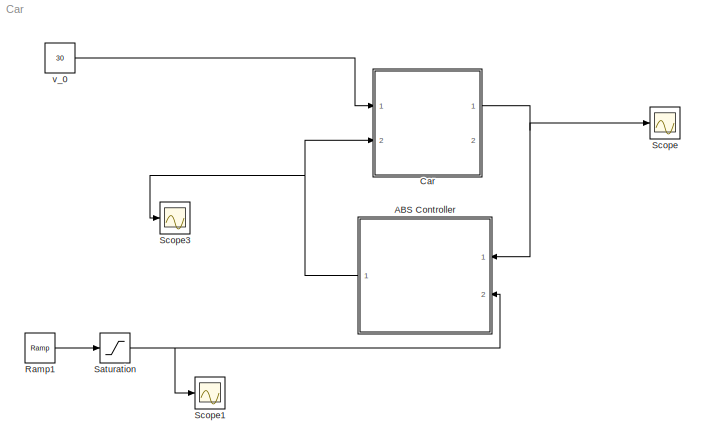
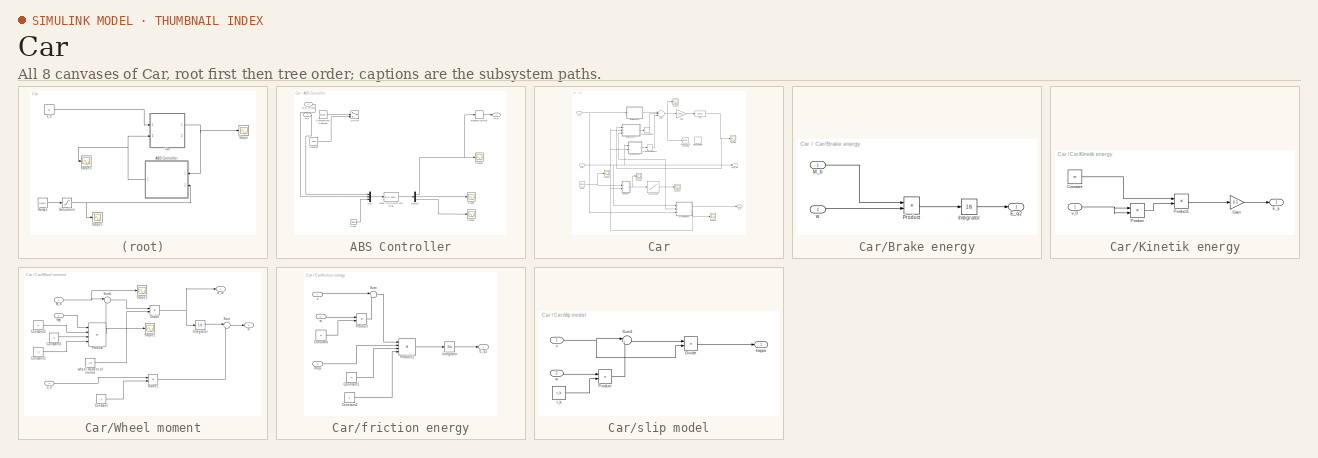
[diagram: thumbnail index - all 8 canvases of the model, root first then tree order]
MODEL Car
KIND model
BLOCK [SubSystem] ABS Controller
  FunctionWithSeparateData = off
  MaskHideContents = off
  MinAlgLoopOccurrences = off
  Opaque = off
  Ports = [2, 1]
  PropExecContextOutsideSubsystem = off
  RTWSystemCode = Auto
  RequestExecContextInheritance = off
  SID = 11
BLOCK [Clock] ABS Controller/Clock
  Decimation = 10
  SID = 179
BLOCK [Reference] ABS Controller/Compare\nTo Constant  REF=simulink/Logic and Bit\nOperations/Compare\nTo Constant
  FunctionWithSeparateData = off
  LogicOutDataTypeMode = boolean
  Ports = [1, 1]
  RTWMemSecDataConstants = Inherit from model
  RTWMemSecDataInternal = Inherit from model
  RTWMemSecDataParameters = Inherit from model
  RTWMemSecFuncExecute = Inherit from model
  RTWMemSecFuncInitTerm = Inherit from model
  SID = 186
  ShowPortLabels = FromPortIcon
  SourceBlock = simulink/Logic and Bit\nOperations/Compare\nTo Constant
  SourceType = Compare To Constant
  SystemSampleTime = -1
  ZeroCross = on
  const = -20
  relop = >=
BLOCK [Constant] ABS Controller/Constant
  OutDataType = fixdt(1, 16)
  OutScaling = 2^0
  SID = 182
  Value = 1000
BLOCK [Demux] ABS Controller/Demux
  DisplayOption = bar
  Outputs = 3
  Ports = [1, 3]
  SID = 53
BLOCK [M-S-Function] ABS Controller/Level-2 M-file\nS-Function
  FunctionName = controller
  Ports = [1, 1]
  SID = 48
BLOCK [Outport] ABS Controller/M_B
  IconDisplay = Port number
  OutDataType = fixdt(1, 16)
  OutScaling = 2^0
  SID = 12
BLOCK [Inport] ABS Controller/M_B Driver
  IconDisplay = Port number
  OutDataType = fixdt(1, 16)
  OutScaling = 2^0
  Port = 2
  SID = 177
BLOCK [Mux] ABS Controller/Mux
  DisplayOption = bar
  Inputs = 3
  Ports = [3, 1]
  SID = 52
BLOCK [Scope] ABS Controller/Scope
  DataFormat = StructureWithTime
  Floating = off
  NumInputPorts = 1
  Ports = [1]
  SID = 46
  SampleTime = 0
  SaveName = ScopeData3
  YMax = 3
  YMin = 0
  ZoomMode = yonly
BLOCK [Scope] ABS Controller/Scope1
  DataFormat = StructureWithTime
  Floating = off
  NumInputPorts = 1
  Ports = [1]
  SID = 180
  SampleTime = 0
  SaveName = ScopeData4
  ZoomMode = yonly
BLOCK [Scope] ABS Controller/Scope2
  DataFormat = StructureWithTime
  Floating = off
  NumInputPorts = 1
  Ports = [1]
  SID = 189
  SampleTime = 0
  SaveName = ScopeData12
  YMax = 900
  YMin = 0
  ZoomMode = yonly
BLOCK [Switch] ABS Controller/Switch
  InputSameDT = off
  OutDataType = fixdt(1, 16)
  OutScaling = 2^0
  SID = 181
  SaturateOnIntegerOverflow = off
BLOCK [TransportDelay] ABS Controller/Transport\nDelay
  DelayTime = 0.3
  SID = 198
BLOCK [Inport] ABS Controller/W_a
  IconDisplay = Port number
  OutDataType = fixdt(1, 16)
  OutScaling = 2^0
  SID = 13
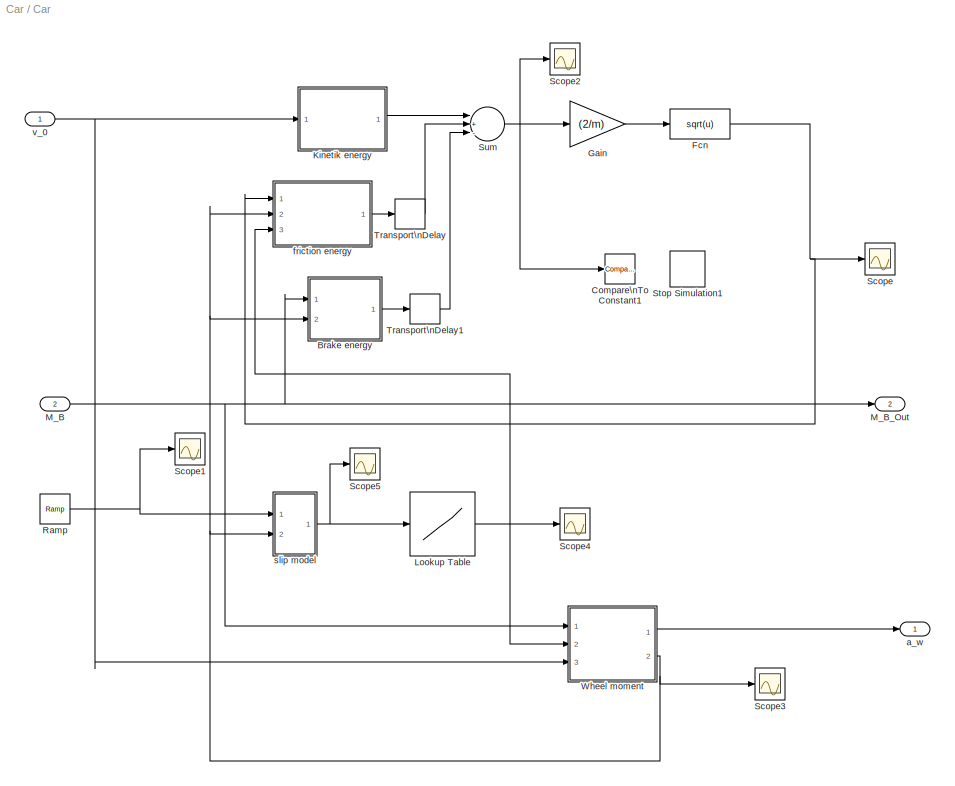
BLOCK [SubSystem] Car
  FunctionWithSeparateData = off
  MaskHideContents = off
  MinAlgLoopOccurrences = off
  Opaque = off
  Ports = [2, 2]
  PropExecContextOutsideSubsystem = off
  RTWSystemCode = Auto
  RequestExecContextInheritance = off
  SID = 5
BLOCK [SubSystem] Car/Brake energy
  FunctionWithSeparateData = off
  MaskHideContents = off
  MinAlgLoopOccurrences = off
  Opaque = off
  Ports = [2, 1]
  PropExecContextOutsideSubsystem = off
  RTWSystemCode = Auto
  RequestExecContextInheritance = off
  SID = 86
BLOCK [Outport] Car/Brake energy/E_q2
  IconDisplay = Port number
  OutDataType = fixdt(1, 16)
  OutScaling = 2^0
  SID = 89
BLOCK [Integrator] Car/Brake energy/Integrator
  Ports = [1, 1]
  SID = 83
BLOCK [Inport] Car/Brake energy/M_b
  IconDisplay = Port number
  OutDataType = fixdt(1, 16)
  OutScaling = 2^0
  SID = 87
BLOCK [Product] Car/Brake energy/Product
  InputSameDT = off
  OutDataType = fixdt(1, 16)
  OutDataTypeMode = Inherit via internal rule
  OutDataTypeStr = Inherit: Inherit via internal rule
  OutScaling = 2^0
  Ports = [2, 1]
  SID = 84
  SaturateOnIntegerOverflow = off
BLOCK [Inport] Car/Brake energy/w
  IconDisplay = Port number
  OutDataType = fixdt(1, 16)
  OutScaling = 2^0
  Port = 2
  SID = 88
BLOCK [Reference] Car/Compare\nTo Constant1  REF=simulink/Logic and Bit\nOperations/Compare\nTo Constant
  FunctionWithSeparateData = off
  LogicOutDataTypeMode = boolean
  Ports = [1, 1]
  RTWMemSecDataConstants = Inherit from model
  RTWMemSecDataInternal = Inherit from model
  RTWMemSecDataParameters = Inherit from model
  RTWMemSecFuncExecute = Inherit from model
  RTWMemSecFuncInitTerm = Inherit from model
  SID = 148
  ShowPortLabels = FromPortIcon
  SourceBlock = simulink/Logic and Bit\nOperations/Compare\nTo Constant
  SourceType = Compare To Constant
  SystemSampleTime = -1
  ZeroCross = on
  const = 1
  relop = <=
BLOCK [Fcn] Car/Fcn
  Expr = sqrt(u)
  SID = 93
BLOCK [Gain] Car/Gain
  Gain = (2/m)
  OutDataType = fixdt(1, 16)
  OutDataTypeMode = Inherit via internal rule
  OutDataTypeStr = Inherit: Inherit via internal rule
  OutScaling = 2^0
  ParamDataTypeStr = Inherit: Inherit via internal rule
  ParameterDataType = fixdt(1, 16)
  ParameterDataTypeMode = Inherit via internal rule
  ParameterScaling = 2^0
  SID = 91
  SaturateOnIntegerOverflow = off
BLOCK [SubSystem] Car/Kinetik energy
  FunctionWithSeparateData = off
  MaskHideContents = off
  MinAlgLoopOccurrences = off
  Opaque = off
  Ports = [1, 1]
  PropExecContextOutsideSubsystem = off
  RTWSystemCode = Auto
  RequestExecContextInheritance = off
  SID = 64
BLOCK [Constant] Car/Kinetik energy/Constant
  OutDataType = fixdt(1, 16)
  OutScaling = 2^0
  SID = 58
  Value = m
BLOCK [Outport] Car/Kinetik energy/E_k
  IconDisplay = Port number
  OutDataType = fixdt(1, 16)
  OutScaling = 2^0
  SID = 65
BLOCK [Gain] Car/Kinetik energy/Gain
  Gain = 0.5
  OutDataType = fixdt(1, 16)
  OutDataTypeMode = Inherit via internal rule
  OutDataTypeStr = Inherit: Inherit via internal rule
  OutScaling = 2^0
  ParamDataTypeStr = Inherit: Inherit via internal rule
  ParameterDataType = fixdt(1, 16)
  ParameterDataTypeMode = Inherit via internal rule
  ParameterScaling = 2^0
  SID = 62
  SaturateOnIntegerOverflow = off
BLOCK [Product] Car/Kinetik energy/Product
  InputSameDT = off
  OutDataType = fixdt(1, 16)
  OutDataTypeMode = Inherit via internal rule
  OutDataTypeStr = Inherit: Inherit via internal rule
  OutScaling = 2^0
  Ports = [2, 1]
  SID = 60
  SaturateOnIntegerOverflow = off
BLOCK [Product] Car/Kinetik energy/Product1
  InputSameDT = off
  OutDataType = fixdt(1, 16)
  OutDataTypeMode = Inherit via internal rule
  OutDataTypeStr = Inherit: Inherit via internal rule
  OutScaling = 2^0
  Ports = [2, 1]
  SID = 61
  SaturateOnIntegerOverflow = off
BLOCK [Inport] Car/Kinetik energy/v_0
  IconDisplay = Port number
  OutDataType = fixdt(1, 16)
  OutScaling = 2^0
  SID = 66
BLOCK [Lookup] Car/Lookup Table
  InputValues = [-1,-0.8,-0.6,-0.4,-0.2,0,0.2,0.4,0.6,0.8,1]
  OutDataType = fixdt(1, 16)
  OutScaling = 2^0
  SID = 110
  SaturateOnIntegerOverflow = off
  Table = [-0.6099092042625951,-0.629329299739067,-0.6550547536867305,-0.7240275800758169,-0.8015941559557649,0,0.8015941559557649,0.7240275800758169,0.6550547536867305,0.629329299739067,0.6099092042625951]
BLOCK [Inport] Car/M_B
  IconDisplay = Port number
  OutDataType = fixdt(1, 16)
  OutScaling = 2^0
  Port = 2
  SID = 170
BLOCK [Outport] Car/M_B_Out
  IconDisplay = Port number
  OutDataType = fixdt(1, 16)
  OutScaling = 2^0
  Port = 2
  SID = 173
BLOCK [Reference] Car/Ramp  REF=simulink/Sources/Ramp
  FunctionWithSeparateData = off
  Ports = [0, 1]
  RTWMemSecDataConstants = Inherit from model
  RTWMemSecDataInternal = Inherit from model
  RTWMemSecDataParameters = Inherit from model
  RTWMemSecFuncExecute = Inherit from model
  RTWMemSecFuncInitTerm = Inherit from model
  SID = 195
  ShowPortLabels = FromPortIcon
  SourceBlock = simulink/Sources/Ramp
  SourceType = Ramp
  SystemSampleTime = -1
  VectorParams1D = on
  X0 = 30
  slope = -1
  start = 0.1
BLOCK [Scope] Car/Scope
  DataFormat = StructureWithTime
  Floating = off
  NumInputPorts = 1
  Ports = [1]
  SID = 96
  SampleTime = 0
  SaveName = ScopeData2
BLOCK [Scope] Car/Scope1
  DataFormat = StructureWithTime
  Floating = off
  NumInputPorts = 1
  Ports = [1]
  SID = 199
  SampleTime = 0
  SaveName = ScopeData13
BLOCK [Scope] Car/Scope2
  DataFormat = StructureWithTime
  Floating = off
  NumInputPorts = 1
  Ports = [1]
  SID = 135
  SampleTime = 0
  SaveName = ScopeData5
BLOCK [Scope] Car/Scope3
  DataFormat = StructureWithTime
  Floating = off
  NumInputPorts = 1
  Ports = [1]
  SID = 136
  SampleTime = 0
  SaveName = ScopeData6
BLOCK [Scope] Car/Scope4
  DataFormat = StructureWithTime
  Floating = off
  NumInputPorts = 1
  Ports = [1]
  SID = 146
  SampleTime = 0
  SaveName = ScopeData7
  ZoomMode = xonly
BLOCK [Scope] Car/Scope5
  DataFormat = StructureWithTime
  Floating = off
  NumInputPorts = 1
  Ports = [1]
  SID = 147
  SampleTime = 0
  SaveName = ScopeData8
BLOCK [Stop] Car/Stop Simulation1
  SID = 149
BLOCK [Sum] Car/Sum
  InputSameDT = off
  Inputs = |+--
  OutDataType = fixdt(1, 16)
  OutDataTypeMode = Inherit via internal rule
  OutDataTypeStr = Inherit: Inherit via internal rule
  OutScaling = 2^0
  Ports = [3, 1]
  SID = 90
  SaturateOnIntegerOverflow = off
BLOCK [TransportDelay] Car/Transport\nDelay
  SID = 191
BLOCK [TransportDelay] Car/Transport\nDelay1
  SID = 192
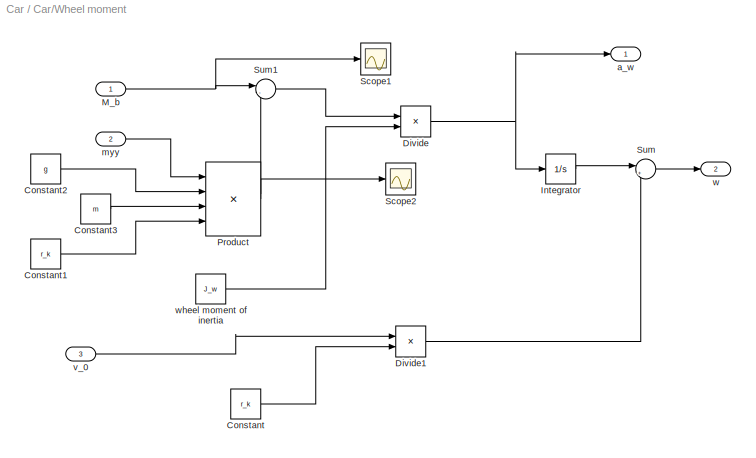
BLOCK [SubSystem] Car/Wheel moment
  FunctionWithSeparateData = off
  MaskHideContents = off
  MinAlgLoopOccurrences = off
  Opaque = off
  Ports = [3, 2]
  PropExecContextOutsideSubsystem = off
  RTWSystemCode = Auto
  RequestExecContextInheritance = off
  SID = 126
BLOCK [Constant] Car/Wheel moment/Constant
  OutDataType = fixdt(1, 16)
  OutScaling = 2^0
  SID = 140
  Value = r_k
BLOCK [Constant] Car/Wheel moment/Constant1
  OutDataType = fixdt(1, 16)
  OutScaling = 2^0
  SID = 117
  Value = r_k
BLOCK [Constant] Car/Wheel moment/Constant2
  OutDataType = fixdt(1, 16)
  OutScaling = 2^0
  SID = 118
  Value = g
BLOCK [Constant] Car/Wheel moment/Constant3
  OutDataType = fixdt(1, 16)
  OutScaling = 2^0
  SID = 119
  Value = m
BLOCK [Product] Car/Wheel moment/Divide
  InputSameDT = off
  Inputs = */
  OutDataType = fixdt(1, 16)
  OutDataTypeMode = Inherit via internal rule
  OutDataTypeStr = Inherit: Inherit via internal rule
  OutScaling = 2^-10
  Ports = [2, 1]
  RndMeth = Floor
  SID = 122
  SaturateOnIntegerOverflow = off
BLOCK [Product] Car/Wheel moment/Divide1
  InputSameDT = off
  Inputs = */
  OutDataType = fixdt(1, 16)
  OutDataTypeMode = Inherit via internal rule
  OutDataTypeStr = Inherit: Inherit via internal rule
  OutScaling = 2^-10
  Ports = [2, 1]
  RndMeth = Floor
  SID = 141
  SaturateOnIntegerOverflow = off
BLOCK [Integrator] Car/Wheel moment/Integrator
  Ports = [1, 1]
  SID = 125
BLOCK [Inport] Car/Wheel moment/M_b
  IconDisplay = Port number
  OutDataType = fixdt(1, 16)
  OutScaling = 2^0
  SID = 128
BLOCK [Product] Car/Wheel moment/Product
  InputSameDT = off
  Inputs = 4
  OutDataType = fixdt(1, 16)
  OutDataTypeMode = Inherit via internal rule
  OutDataTypeStr = Inherit: Inherit via internal rule
  OutScaling = 2^0
  Ports = [4, 1]
  SID = 120
  SaturateOnIntegerOverflow = off
BLOCK [Scope] Car/Wheel moment/Scope1
  DataFormat = StructureWithTime
  Floating = off
  NumInputPorts = 1
  Ports = [1]
  SID = 155
  SampleTime = 0
  SaveName = ScopeData9
  TimeRange = 5
BLOCK [Scope] Car/Wheel moment/Scope2
  DataFormat = StructureWithTime
  Floating = off
  NumInputPorts = 1
  Ports = [1]
  SID = 157
  SampleTime = 0
  SaveName = ScopeData10
BLOCK [Sum] Car/Wheel moment/Sum
  IconShape = round
  InputSameDT = off
  Inputs = |++
  OutDataType = fixdt(1, 16)
  OutDataTypeMode = Inherit via internal rule
  OutDataTypeStr = Inherit: Inherit via internal rule
  OutScaling = 2^0
  Ports = [2, 1]
  SID = 139
  SaturateOnIntegerOverflow = off
BLOCK [Sum] Car/Wheel moment/Sum1
  IconShape = round
  InputSameDT = off
  Inputs = |-+
  OutDataType = fixdt(1, 16)
  OutDataTypeMode = Inherit via internal rule
  OutDataTypeStr = Inherit: Inherit via internal rule
  OutScaling = 2^0
  Ports = [2, 1]
  SID = 115
  SaturateOnIntegerOverflow = off
BLOCK [Outport] Car/Wheel moment/a_w
  IconDisplay = Port number
  OutDataType = fixdt(1, 16)
  OutScaling = 2^0
  SID = 127
BLOCK [Inport] Car/Wheel moment/myy
  IconDisplay = Port number
  OutDataType = fixdt(1, 16)
  OutScaling = 2^0
  Port = 2
  SID = 129
BLOCK [Inport] Car/Wheel moment/v_0
  IconDisplay = Port number
  OutDataType = fixdt(1, 16)
  OutScaling = 2^0
  Port = 3
  SID = 138
BLOCK [Outport] Car/Wheel moment/w
  IconDisplay = Port number
  OutDataType = fixdt(1, 16)
  OutScaling = 2^0
  Port = 2
  SID = 130
BLOCK [Constant] Car/Wheel moment/wheel moment of inertia
  OutDataType = fixdt(1, 16)
  OutScaling = 2^0
  SID = 121
  Value = J_w
BLOCK [Outport] Car/a_w
  IconDisplay = Port number
  OutDataType = fixdt(1, 16)
  OutScaling = 2^0
  SID = 165
BLOCK [SubSystem] Car/friction energy
  FunctionWithSeparateData = off
  MaskHideContents = off
  MinAlgLoopOccurrences = off
  Opaque = off
  Ports = [3, 1]
  PropExecContextOutsideSubsystem = off
  RTWSystemCode = Auto
  RequestExecContextInheritance = off
  SID = 78
BLOCK [Constant] Car/friction energy/Constant
  OutDataType = fixdt(1, 16)
  OutScaling = 2^0
  SID = 71
  Value = R
BLOCK [Constant] Car/friction energy/Constant1
  OutDataType = fixdt(1, 16)
  OutScaling = 2^0
  SID = 75
  Value = m
BLOCK [Constant] Car/friction energy/Constant2
  OutDataType = fixdt(1, 16)
  OutScaling = 2^0
  SID = 76
  Value = g
BLOCK [Outport] Car/friction energy/E_q1
  IconDisplay = Port number
  OutDataType = fixdt(1, 16)
  OutScaling = 2^0
  SID = 81
BLOCK [Integrator] Car/friction energy/Integrator
  Ports = [1, 1]
  SID = 67
BLOCK [Product] Car/friction energy/Product
  InputSameDT = off
  OutDataType = fixdt(1, 16)
  OutDataTypeMode = Inherit via internal rule
  OutDataTypeStr = Inherit: Inherit via internal rule
  OutScaling = 2^0
  Ports = [2, 1]
  SID = 69
  SaturateOnIntegerOverflow = off
BLOCK [Product] Car/friction energy/Product1
  InputSameDT = off
  Inputs = 4
  OutDataType = fixdt(1, 16)
  OutDataTypeMode = Inherit via internal rule
  OutDataTypeStr = Inherit: Inherit via internal rule
  OutScaling = 2^0
  Ports = [4, 1]
  SID = 74
  SaturateOnIntegerOverflow = off
BLOCK [Sum] Car/friction energy/Sum
  IconShape = round
  InputSameDT = off
  Inputs = |+-
  OutDataType = fixdt(1, 16)
  OutDataTypeMode = Inherit via internal rule
  OutDataTypeStr = Inherit: Inherit via internal rule
  OutScaling = 2^0
  Ports = [2, 1]
  SID = 72
  SaturateOnIntegerOverflow = off
BLOCK [Inport] Car/friction energy/myy
  IconDisplay = Port number
  OutDataType = fixdt(1, 16)
  OutScaling = 2^0
  Port = 3
  SID = 82
BLOCK [Inport] Car/friction energy/v
  IconDisplay = Port number
  OutDataType = fixdt(1, 16)
  OutScaling = 2^0
  SID = 79
BLOCK [Inport] Car/friction energy/w
  IconDisplay = Port number
  OutDataType = fixdt(1, 16)
  OutScaling = 2^0
  Port = 2
  SID = 80
BLOCK [SubSystem] Car/slip model
  FunctionWithSeparateData = off
  MaskHideContents = off
  MinAlgLoopOccurrences = off
  Opaque = off
  Ports = [2, 1]
  PropExecContextOutsideSubsystem = off
  RTWSystemCode = Auto
  RequestExecContextInheritance = off
  SID = 106
BLOCK [Product] Car/slip model/Divide
  InputSameDT = off
  Inputs = */
  OutDataType = fixdt(1, 16)
  OutDataTypeMode = Inherit via internal rule
  OutDataTypeStr = Inherit: Inherit via internal rule
  OutScaling = 2^-10
  Ports = [2, 1]
  RndMeth = Floor
  SID = 104
  SaturateOnIntegerOverflow = off
BLOCK [Product] Car/slip model/Product
  InputSameDT = off
  OutDataType = fixdt(1, 16)
  OutDataTypeMode = Inherit via internal rule
  OutDataTypeStr = Inherit: Inherit via internal rule
  OutScaling = 2^0
  Ports = [2, 1]
  SID = 101
  SaturateOnIntegerOverflow = off
BLOCK [Sum] Car/slip model/Sum1
  IconShape = round
  InputSameDT = off
  Inputs = |+-
  OutDataType = fixdt(1, 16)
  OutDataTypeMode = Inherit via internal rule
  OutDataTypeStr = Inherit: Inherit via internal rule
  OutScaling = 2^0
  Ports = [2, 1]
  SID = 103
  SaturateOnIntegerOverflow = off
BLOCK [Outport] Car/slip model/kappa
  IconDisplay = Port number
  OutDataType = fixdt(1, 16)
  OutScaling = 2^0
  SID = 108
BLOCK [Constant] Car/slip model/r_k
  OutDataType = fixdt(1, 16)
  OutScaling = 2^0
  SID = 102
  Value = r_k
BLOCK [Inport] Car/slip model/v
  IconDisplay = Port number
  OutDataType = fixdt(1, 16)
  OutScaling = 2^0
  SID = 107
BLOCK [Inport] Car/slip model/w
  IconDisplay = Port number
  OutDataType = fixdt(1, 16)
  OutScaling = 2^0
  Port = 2
  SID = 109
BLOCK [Inport] Car/v_0
  IconDisplay = Port number
  OutDataType = fixdt(1, 16)
  OutScaling = 2^0
  SID = 166
BLOCK [Reference] Ramp1  REF=simulink/Sources/Ramp
  FunctionWithSeparateData = off
  Ports = [0, 1]
  RTWMemSecDataConstants = Inherit from model
  RTWMemSecDataInternal = Inherit from model
  RTWMemSecDataParameters = Inherit from model
  RTWMemSecFuncExecute = Inherit from model
  RTWMemSecFuncInitTerm = Inherit from model
  SID = 168
  ShowPortLabels = FromPortIcon
  SourceBlock = simulink/Sources/Ramp
  SourceType = Ramp
  SystemSampleTime = -1
  VectorParams1D = on
  X0 = 0
  slope = 50
  start = 0
BLOCK [Saturate] Saturation
  OutDataType = fixdt(1, 16)
  OutScaling = 2^0
  SID = 176
  UpperLimit = 1200
BLOCK [Scope] Scope
  DataFormat = StructureWithTime
  Floating = off
  NumInputPorts = 1
  Ports = [1]
  SID = 35
  SampleTime = 0
  TimeRange = 5
  YMin = -7
BLOCK [Scope] Scope1
  DataFormat = StructureWithTime
  Floating = off
  NumInputPorts = 1
  Ports = [1]
  SID = 37
  SampleTime = 0
  SaveName = ScopeData1
BLOCK [Scope] Scope3
  DataFormat = StructureWithTime
  Floating = off
  NumInputPorts = 1
  Ports = [1]
  SID = 178
  SampleTime = 0
  SaveName = ScopeData11
  TimeRange = 5
  YMax = 10
  YMin = -60
BLOCK [Constant] v_0
  OutDataType = fixdt(1, 16)
  OutScaling = 2^0
  SID = 172
  Value = 30
LINE ABS Controller/Clock:1 -> ABS Controller/Mux:3
LINE ABS Controller/Compare\nTo Constant:1 -> ABS Controller/Switch:2
LINE ABS Controller/Constant:1 -> ABS Controller/Switch:3
NET ABS Controller/Demux:1 -> ABS Controller/Scope2:1, ABS Controller/Transport\nDelay:1
LINE ABS Controller/Demux:2 -> ABS Controller/Scope:1
LINE ABS Controller/Demux:3 -> ABS Controller/Scope1:1
LINE ABS Controller/Level-2 M-file\nS-Function:1 -> ABS Controller/Demux:1
LINE ABS Controller/M_B Driver:1 -> ABS Controller/Mux:2
LINE ABS Controller/Mux:1 -> ABS Controller/Level-2 M-file\nS-Function:1
LINE ABS Controller/Transport\nDelay:1 -> ABS Controller/M_B:1
LINE ABS Controller/W_a:1 -> ABS Controller/Mux:1
NET ABS Controller:1 -> Car:2, Scope3:1
LINE Car/Brake energy/Integrator:1 -> Car/Brake energy/E_q2:1
LINE Car/Brake energy/M_b:1 -> Car/Brake energy/Product:1
LINE Car/Brake energy/Product:1 -> Car/Brake energy/Integrator:1
LINE Car/Brake energy/w:1 -> Car/Brake energy/Product:2
LINE Car/Brake energy:1 -> Car/Transport\nDelay1:1
NET Car/Fcn:1 -> Car/Scope:1, Car/friction energy:1
LINE Car/Gain:1 -> Car/Fcn:1
LINE Car/Kinetik energy/Constant:1 -> Car/Kinetik energy/Product1:1
LINE Car/Kinetik energy/Gain:1 -> Car/Kinetik energy/E_k:1
LINE Car/Kinetik energy/Product1:1 -> Car/Kinetik energy/Gain:1
LINE Car/Kinetik energy/Product:1 -> Car/Kinetik energy/Product1:2
NET Car/Kinetik energy/v_0:1 -> Car/Kinetik energy/Product:1, Car/Kinetik energy/Product:2
LINE Car/Kinetik energy:1 -> Car/Sum:1
NET Car/Lookup Table:1 -> Car/Scope4:1, Car/Wheel moment:2, Car/friction energy:3
NET Car/M_B:1 -> Car/Brake energy:1, Car/M_B_Out:1, Car/Wheel moment:1
NET Car/Ramp:1 -> Car/Scope1:1, Car/slip model:1
NET Car/Sum:1 -> Car/Compare\nTo Constant1:1, Car/Gain:1, Car/Scope2:1
LINE Car/Transport\nDelay1:1 -> Car/Sum:3
LINE Car/Transport\nDelay:1 -> Car/Sum:2
LINE Car/Wheel moment/Constant1:1 -> Car/Wheel moment/Product:4
LINE Car/Wheel moment/Constant2:1 -> Car/Wheel moment/Product:2
LINE Car/Wheel moment/Constant3:1 -> Car/Wheel moment/Product:3
LINE Car/Wheel moment/Constant:1 -> Car/Wheel moment/Divide1:2
LINE Car/Wheel moment/Divide1:1 -> Car/Wheel moment/Sum:2
NET Car/Wheel moment/Divide:1 -> Car/Wheel moment/Integrator:1, Car/Wheel moment/a_w:1
LINE Car/Wheel moment/Integrator:1 -> Car/Wheel moment/Sum:1
NET Car/Wheel moment/M_b:1 -> Car/Wheel moment/Scope1:1, Car/Wheel moment/Sum1:1
NET Car/Wheel moment/Product:1 -> Car/Wheel moment/Scope2:1, Car/Wheel moment/Sum1:2
LINE Car/Wheel moment/Sum1:1 -> Car/Wheel moment/Divide:1
LINE Car/Wheel moment/Sum:1 -> Car/Wheel moment/w:1
LINE Car/Wheel moment/myy:1 -> Car/Wheel moment/Product:1
LINE Car/Wheel moment/v_0:1 -> Car/Wheel moment/Divide1:1
LINE Car/Wheel moment/wheel moment of inertia:1 -> Car/Wheel moment/Divide:2
LINE Car/Wheel moment:1 -> Car/a_w:1
NET Car/Wheel moment:2 -> Car/Brake energy:2, Car/Scope3:1, Car/friction energy:2, Car/slip model:2
LINE Car/friction energy/Constant1:1 -> Car/friction energy/Product1:3
LINE Car/friction energy/Constant2:1 -> Car/friction energy/Product1:4
LINE Car/friction energy/Constant:1 -> Car/friction energy/Product:2
LINE Car/friction energy/Integrator:1 -> Car/friction energy/E_q1:1
LINE Car/friction energy/Product1:1 -> Car/friction energy/Integrator:1
LINE Car/friction energy/Product:1 -> Car/friction energy/Sum:2
LINE Car/friction energy/Sum:1 -> Car/friction energy/Product1:1
LINE Car/friction energy/myy:1 -> Car/friction energy/Product1:2
LINE Car/friction energy/v:1 -> Car/friction energy/Sum:1
LINE Car/friction energy/w:1 -> Car/friction energy/Product:1
LINE Car/friction energy:1 -> Car/Transport\nDelay:1
LINE Car/slip model/Divide:1 -> Car/slip model/kappa:1
LINE Car/slip model/Product:1 -> Car/slip model/Sum1:2
LINE Car/slip model/Sum1:1 -> Car/slip model/Divide:1
LINE Car/slip model/r_k:1 -> Car/slip model/Product:2
NET Car/slip model/v:1 -> Car/slip model/Divide:2, Car/slip model/Sum1:1
LINE Car/slip model/w:1 -> Car/slip model/Product:1
NET Car/slip model:1 -> Car/Lookup Table:1, Car/Scope5:1
NET Car/v_0:1 -> Car/Kinetik energy:1, Car/Wheel moment:3
NET Car:1 -> ABS Controller:1, Scope:1
LINE Ramp1:1 -> Saturation:1
NET Saturation:1 -> ABS Controller:2, Scope1:1
LINE v_0:1 -> Car:1
note: NET lines group one-source signal fan-out (src -> all destinations, sorted); 1:1 wires keep LINE
